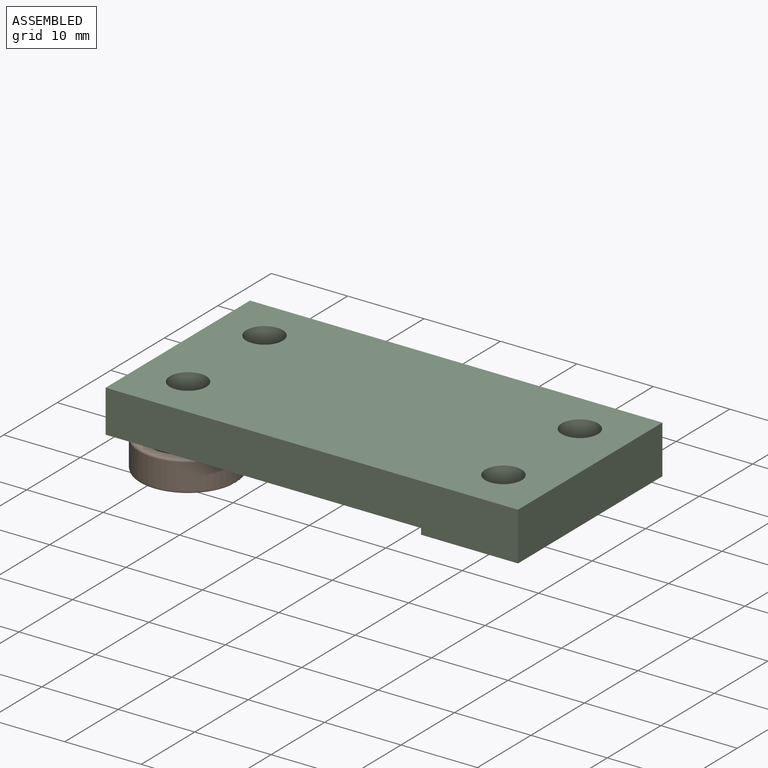
[diagram: assembled view]
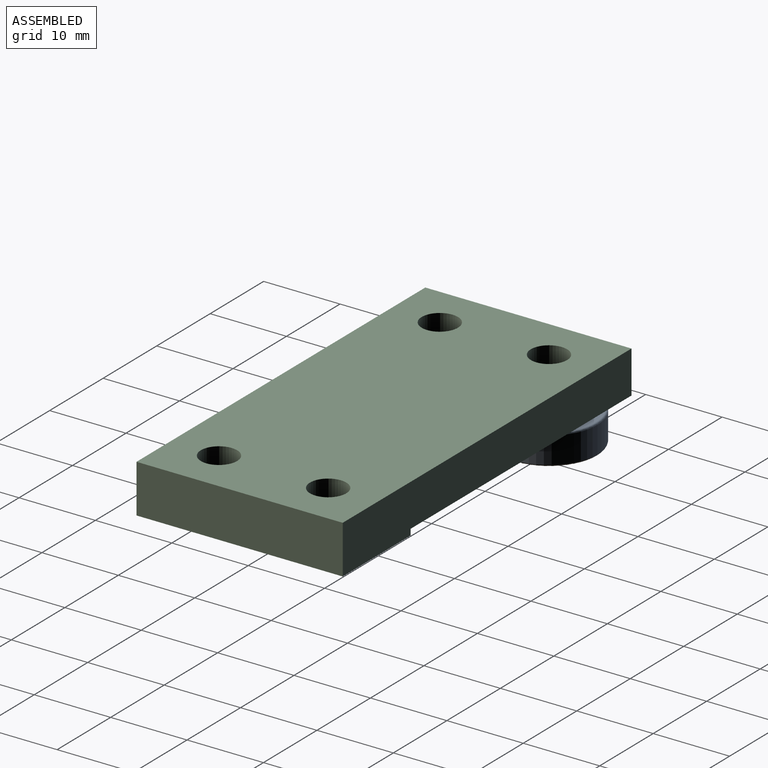
[diagram: assembled view, second angle]
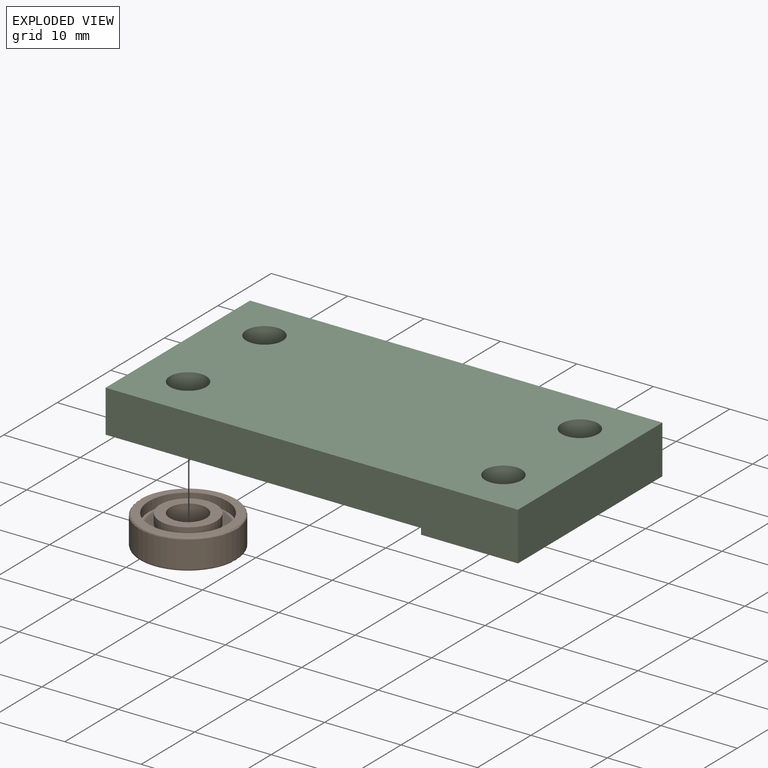
[diagram: exploded view]
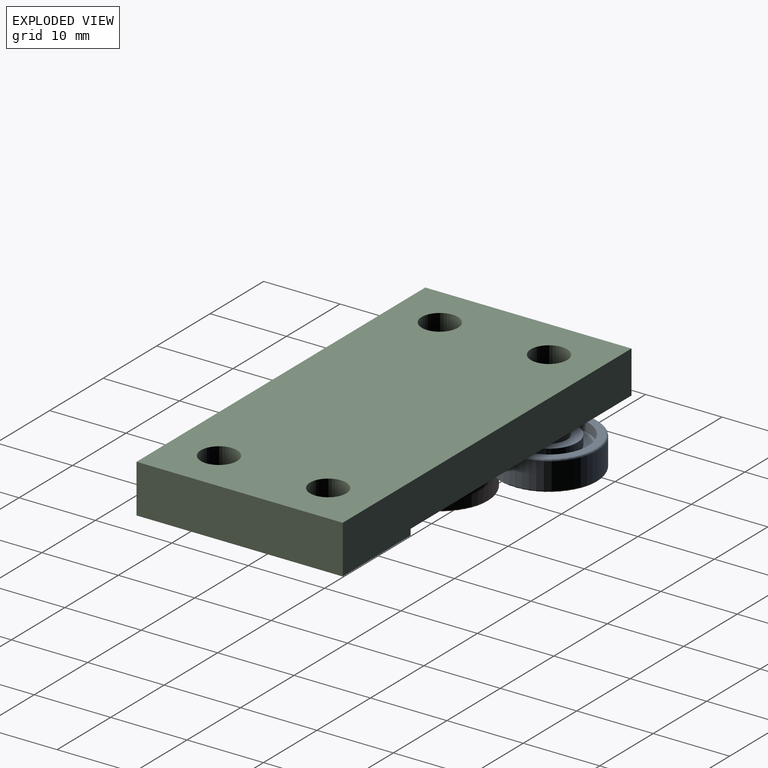
[diagram: exploded view, second angle]
ASSEMBLY  parts=3 mates=4
PART A: 14 faces, bbox 13.7x4x13.7 mm
  f0: torus R=6.1mm, axis (0,1,0), area 15.7mm2, adj f4,f11
  f1: torus R=6.1mm, axis (0,-1,0), area 15.7mm2, adj f4,f12
  f2: cylinder r=3.68mm len=7.37mm, axis (0,-1,0), area 29.4mm2, adj f8,f13
  f3: cylinder r=5.14mm len=10.29mm, axis (0,-1,0), area 41mm2, adj f12,f13
  f4: cylinder r=6.35mm len=12.7mm, axis (0,-1,0), area 137.8mm2, adj f0,f1
  f5: cylinder r=5.14mm len=10.29mm, axis (0,-1,0), area 41mm2, adj f10,f11
  f6: cylinder r=3.68mm len=7.37mm, axis (0,-1,0), area 29.4mm2, adj f9,f10
  f7: cylinder r=2.38mm len=4.76mm, axis (0,-1,0), area 59.3mm2, adj f8,f9
  f8: plane 7.37x7.37mm, normal (0,-1,0), area 24.8mm2, adj f2,f7
  f9: plane 7.37x7.37mm, normal (0,1,0), area 24.8mm2, adj f6,f7
  f10: plane 10.29x10.29mm, normal (0,1,0), area 40.5mm2, adj f5,f6
  f11: plane 12.19x12.19mm, normal (0,1,0), area 33.6mm2, adj f0,f5
  f12: plane 12.19x12.19mm, normal (0,-1,0), area 33.6mm2, adj f1,f3
  f13: plane 10.29x10.29mm, normal (0,-1,0), area 40.5mm2, adj f2,f3
PART B: same geometry as A
PART C: 12 faces, bbox 54x27x6.4 mm
  f0: plane 53.98x6.35mm, normal (0,-1,0), area 310mm2, adj f3,f7,f8,f9,f10,f11
  f1: cylinder r=2.38mm len=5.56mm, axis (0,0,-1), area 83.1mm2, adj f8,f11
  f2: cylinder r=2.38mm len=5.56mm, axis (0,0,-1), area 83.1mm2, adj f8,f11
  f3: plane 26.99x6.35mm, normal (1,0,0), area 171.4mm2, adj f0,f4,f8,f9
  f4: plane 53.98x6.35mm, normal (0,1,0), area 310mm2, adj f3,f7,f8,f9,f10,f11
  f5: cylinder r=2.38mm len=6.35mm, axis (0,0,-1), area 95mm2, adj f8,f9
  f6: cylinder r=2.38mm len=6.35mm, axis (0,0,-1), area 95mm2, adj f8,f9
  f7: plane 26.99x5.56mm, normal (-1,0,0), area 149.9mm2, adj f0,f4,f8,f11
  f8: plane 53.98x26.99mm, normal (0,0,1), area 1385.4mm2, adj f0,f1,f2,f3,f4,f5,f6,f7
  f9: plane 26.99x12.7mm, normal (0,0,-1), area 307.1mm2, adj f0,f3,f4,f5,f6,f10
  f10: plane 26.99x0.79mm, normal (-1,0,0), area 21.4mm2, adj f0,f4,f9,f11
  f11: plane 41.28x26.99mm, normal (0,0,-1), area 1078.3mm2, adj f0,f1,f2,f4,f7,f10
PLACE A rot(axis=(1,0,0),90deg) t=(-36.46,-9.16,-13.21)mm
PLACE B rot(axis=(1,0,0),90deg) t=(-36.46,-23.44,-13.21)mm
PLACE C t=(-15.82,-16.3,-9.25)mm
MATE planar A.f0 <-> C.f9  axis (0,0,1) through (-36.46,-9.16,-9.25)mm
MATE planar B.f0 <-> C.f9  axis (0,0,1) through (-36.46,-23.44,-9.25)mm
MATE cylindrical A.f0 <-> C.f1  axis (0,0,-1) through (-36.46,-9.16,-9.25)mm
MATE cylindrical B.f0 <-> C.f2  axis (0,0,-1) through (-36.46,-23.44,-13.21)mm
